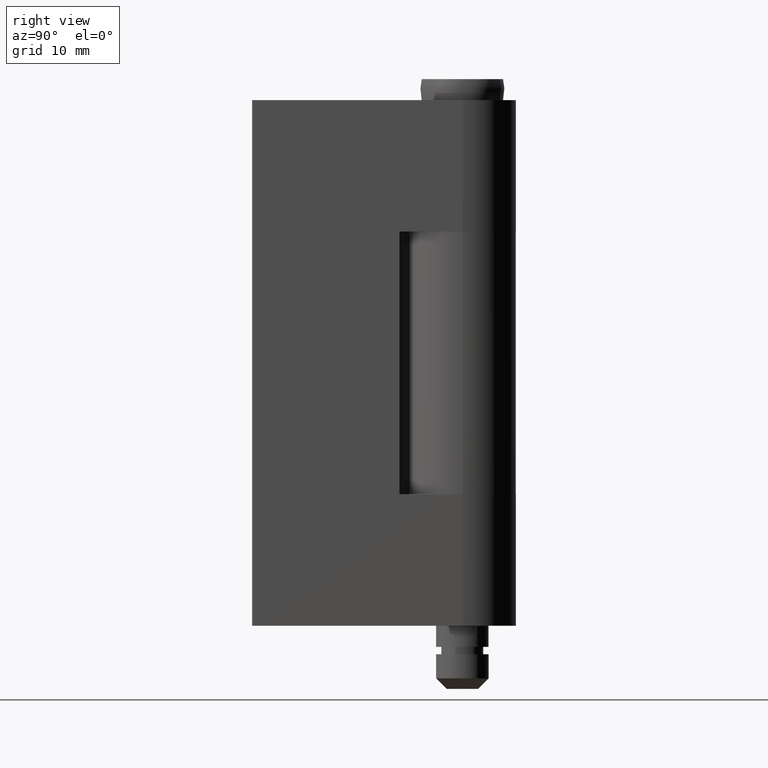
[diagram: clean part render]
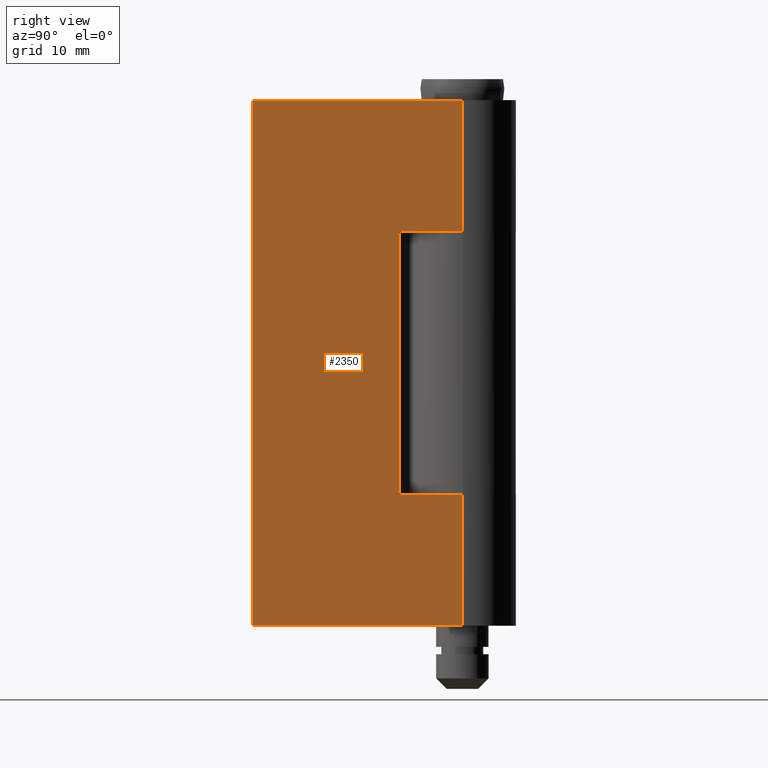
[diagram: same view with one face highlighted and labeled with its STEP entity id]
A machine part, right view. The second image highlights one B-rep face of the part: STEP entity #2350.
In plain terms, the highlighted face is a freeform B-spline surface patch.
Its self-contained STEP definition (entity closure, byte-faithful):
#1822=CARTESIAN_POINT('',(5.099991000000000,-0.009581227431490,43.500000000000000));
#1823=VERTEX_POINT('',#1822);
#1843=CARTESIAN_POINT('',(5.099991000000000,-6.0,43.500000000000000));
#1844=VERTEX_POINT('',#1843);
#1845=CARTESIAN_POINT('',(5.099991000000000,-6.0,43.500000000000000));
#1846=CARTESIAN_POINT('',(5.099991000000000,-0.009581227431490,43.500000000000000));
#1847=QUASI_UNIFORM_CURVE('',1,(#1845,#1846),.UNSPECIFIED.,.F.,.U.);
#1848=EDGE_CURVE('',#1844,#1823,#1847,.T.);
#1871=CARTESIAN_POINT('',(5.099991000000000,-6.0,18.500000000000000));
#1872=VERTEX_POINT('',#1871);
#1873=CARTESIAN_POINT('',(5.099991000000000,-6.0,18.500000000000000));
#1874=CARTESIAN_POINT('',(5.099991000000000,-6.0,43.500000000000000));
#1875=QUASI_UNIFORM_CURVE('',1,(#1873,#1874),.UNSPECIFIED.,.F.,.U.);
#1876=EDGE_CURVE('',#1872,#1844,#1875,.T.);
#1899=CARTESIAN_POINT('',(5.099991000000000,-0.009581227431490,18.500000000000000));
#1900=VERTEX_POINT('',#1899);
#1901=CARTESIAN_POINT('',(5.099991000000000,-0.009581227431490,18.500000000000000));
#1902=CARTESIAN_POINT('',(5.099991000000000,-6.0,18.500000000000000));
#1903=QUASI_UNIFORM_CURVE('',1,(#1901,#1902),.UNSPECIFIED.,.F.,.U.);
#1904=EDGE_CURVE('',#1900,#1872,#1903,.T.);
#1975=CARTESIAN_POINT('',(5.099991000000000,-0.009581227431491,6.0));
#1976=VERTEX_POINT('',#1975);
#1977=CARTESIAN_POINT('',(5.099991000000000,-20.0,6.0));
#1978=VERTEX_POINT('',#1977);
#1979=CARTESIAN_POINT('',(5.099991000000000,-0.009581227431491,6.0));
#1980=CARTESIAN_POINT('',(5.099991000000000,-20.0,6.0));
#1981=QUASI_UNIFORM_CURVE('',1,(#1979,#1980),.UNSPECIFIED.,.F.,.U.);
#1982=EDGE_CURVE('',#1976,#1978,#1981,.T.);
#2053=CARTESIAN_POINT('',(5.099991000000000,-0.009581227431491,56.0));
#2054=VERTEX_POINT('',#2053);
#2055=CARTESIAN_POINT('',(5.099991000000000,-20.0,56.0));
#2056=VERTEX_POINT('',#2055);
#2057=CARTESIAN_POINT('',(5.099991000000000,-0.009581227431491,56.0));
#2058=CARTESIAN_POINT('',(5.099991000000000,-20.0,56.0));
#2059=QUASI_UNIFORM_CURVE('',1,(#2057,#2058),.UNSPECIFIED.,.F.,.U.);
#2060=EDGE_CURVE('',#2054,#2056,#2059,.T.);
#2132=CARTESIAN_POINT('',(5.099991000000000,-20.0,56.0));
#2133=CARTESIAN_POINT('',(5.099991000000000,-20.0,6.0));
#2134=QUASI_UNIFORM_CURVE('',1,(#2132,#2133),.UNSPECIFIED.,.F.,.U.);
#2135=EDGE_CURVE('',#2056,#1978,#2134,.T.);
#2175=CARTESIAN_POINT('',(5.099991000000000,-0.009581227431491,56.0));
#2176=CARTESIAN_POINT('',(5.099991000000000,-0.009581227431490,43.500000000000000));
#2177=QUASI_UNIFORM_CURVE('',1,(#2175,#2176),.UNSPECIFIED.,.F.,.U.);
#2178=EDGE_CURVE('',#2054,#1823,#2177,.T.);
#2207=CARTESIAN_POINT('',(5.099991000000000,-0.009581227431490,18.500000000000000));
#2208=CARTESIAN_POINT('',(5.099991000000000,-0.009581227431491,6.0));
#2209=QUASI_UNIFORM_CURVE('',1,(#2207,#2208),.UNSPECIFIED.,.F.,.U.);
#2210=EDGE_CURVE('',#1900,#1976,#2209,.T.);
#2335=CARTESIAN_POINT('',(5.099991000000000,-20.998521378944488,58.497499903090322));
#2336=CARTESIAN_POINT('',(5.099991000000000,-20.998521378944488,3.502498755805195));
#2337=CARTESIAN_POINT('',(5.099991000000000,0.988940687697811,58.497499903090322));
#2338=CARTESIAN_POINT('',(5.099991000000000,0.988940687697811,3.502498755805195));
#2339=B_SPLINE_SURFACE_WITH_KNOTS('',1,1,((#2335,#2337),(#2336,#2338)),.UNSPECIFIED.,.F.,.F.,.U.,(2,2),(2,2),(0.0,54.995001147285123),(0.0,21.987462066642291),.UNSPECIFIED.);
#2340=ORIENTED_EDGE('',*,*,#2210,.F.);
#2341=ORIENTED_EDGE('',*,*,#1904,.T.);
#2342=ORIENTED_EDGE('',*,*,#1876,.T.);
#2343=ORIENTED_EDGE('',*,*,#1848,.T.);
#2344=ORIENTED_EDGE('',*,*,#2178,.F.);
#2345=ORIENTED_EDGE('',*,*,#2060,.T.);
#2346=ORIENTED_EDGE('',*,*,#2135,.T.);
#2347=ORIENTED_EDGE('',*,*,#1982,.F.);
#2348=EDGE_LOOP('',(#2340,#2341,#2342,#2343,#2344,#2345,#2346,#2347));
#2349=FACE_OUTER_BOUND('',#2348,.T.);
#2350=ADVANCED_FACE('',(#2349),#2339,.T.);